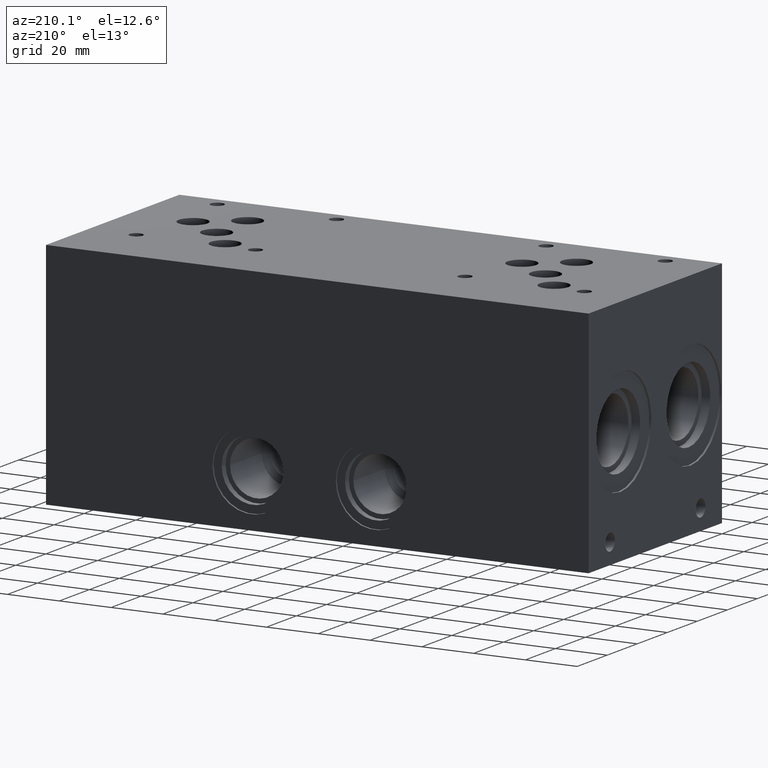
[diagram: clean part render]
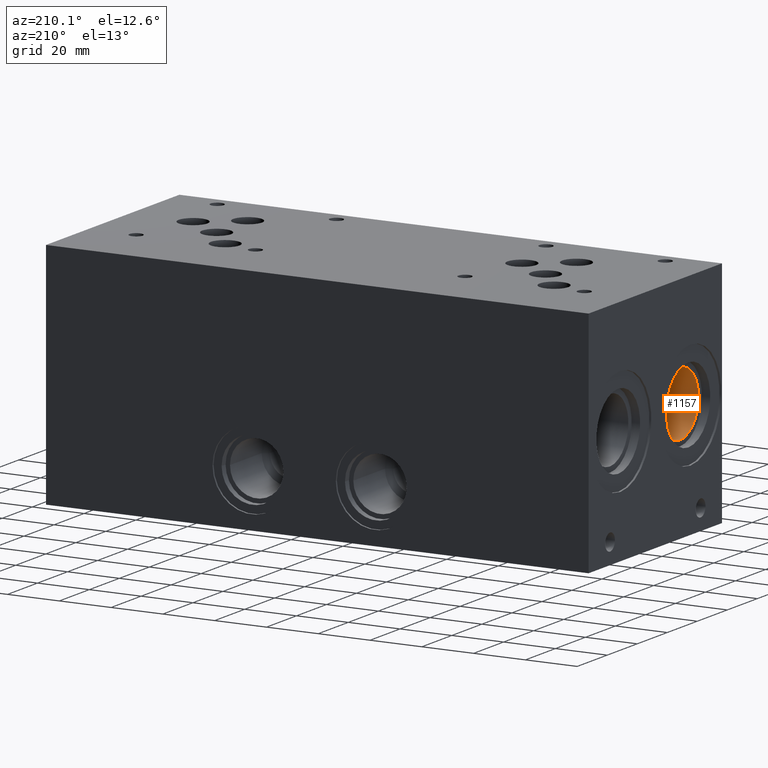
[diagram: same view with one face highlighted and labeled with its STEP entity id]
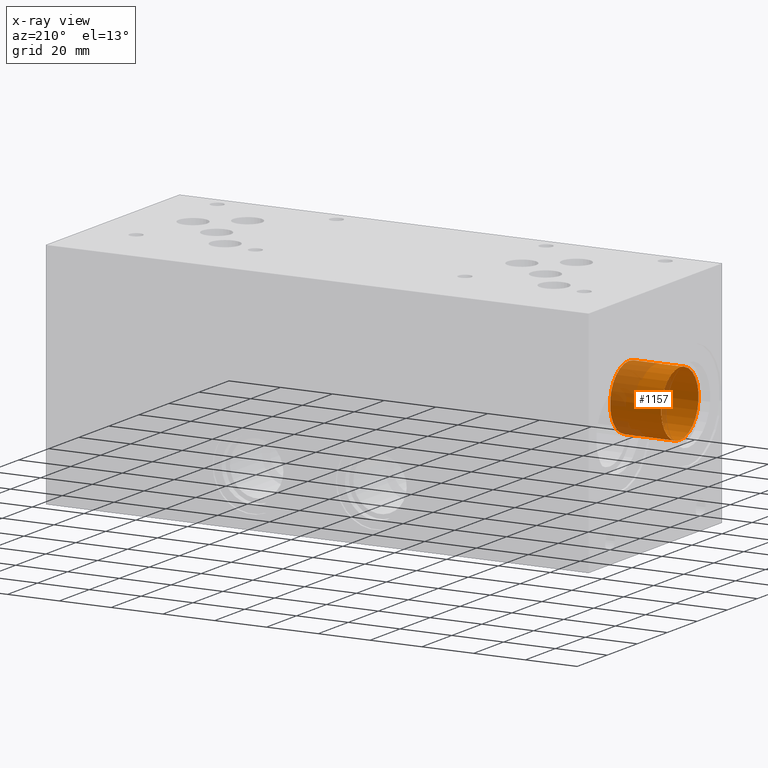
[diagram: x-ray of the same camera — body ghosted, the highlighted face saturated]
A machine part, auxiliary view. The second image highlights one B-rep face of the part: STEP entity #1157.
The next image is the same camera in x-ray: the body ghosted, the highlighted face saturated — about 27% of this face is hidden behind the body in this view.
In plain terms, the highlighted cylindrical surface (bore or boss wall) has radius 12.4587 mm, axis along (-1, 0, 0).
Its self-contained STEP definition (entity closure, byte-faithful):
#1123=CARTESIAN_POINT('',(23.794966200000005,21.082000000000001,56.908700000000003));
#1124=VERTEX_POINT('',#1123);
#1125=CARTESIAN_POINT('',(23.794966200000005,21.082000000000001,44.450000000000003));
#1126=DIRECTION('',(-1.0,0.0,0.0));
#1127=DIRECTION('',(0.0,0.0,1.0));
#1128=AXIS2_PLACEMENT_3D('',#1125,#1126,#1127);
#1129=CIRCLE('',#1128,12.4587);
#1130=EDGE_CURVE('',#1124,#1124,#1129,.T.);
#1138=CARTESIAN_POINT('',(13.929483100000002,21.082000000000001,44.450000000000003));
#1139=DIRECTION('',(-1.0,0.0,0.0));
#1140=DIRECTION('',(0.0,0.0,1.0));
#1141=AXIS2_PLACEMENT_3D('',#1138,#1139,#1140);
#1142=CYLINDRICAL_SURFACE('',#1141,12.4587);
#1143=CARTESIAN_POINT('',(4.064,21.082000000000001,56.908700000000003));
#1144=VERTEX_POINT('',#1143);
#1145=CARTESIAN_POINT('',(4.064,21.082000000000001,44.450000000000003));
#1146=DIRECTION('',(-1.0,0.0,0.0));
#1147=DIRECTION('',(0.0,0.0,1.0));
#1148=AXIS2_PLACEMENT_3D('',#1145,#1146,#1147);
#1149=CIRCLE('',#1148,12.4587);
#1150=EDGE_CURVE('',#1144,#1144,#1149,.T.);
#1151=ORIENTED_EDGE('',*,*,#1150,.T.);
#1152=EDGE_LOOP('',(#1151));
#1153=FACE_OUTER_BOUND('',#1152,.T.);
#1154=ORIENTED_EDGE('',*,*,#1130,.F.);
#1155=EDGE_LOOP('',(#1154));
#1156=FACE_BOUND('',#1155,.T.);
#1157=ADVANCED_FACE('',(#1153,#1156),#1142,.F.);